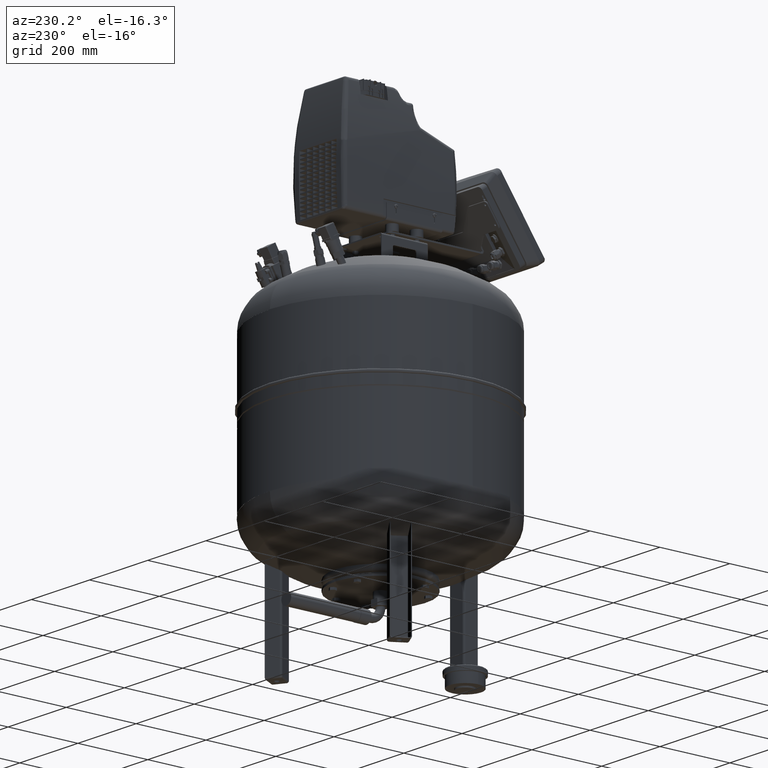
[diagram: clean part render]
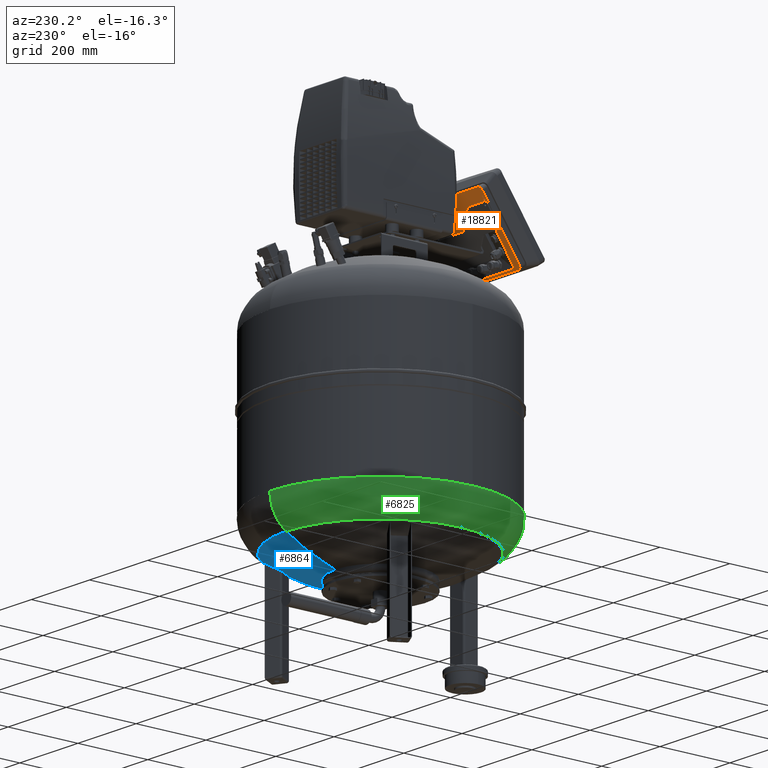
[diagram: same view with three faces highlighted in distinct colors, each labeled with its STEP entity id]
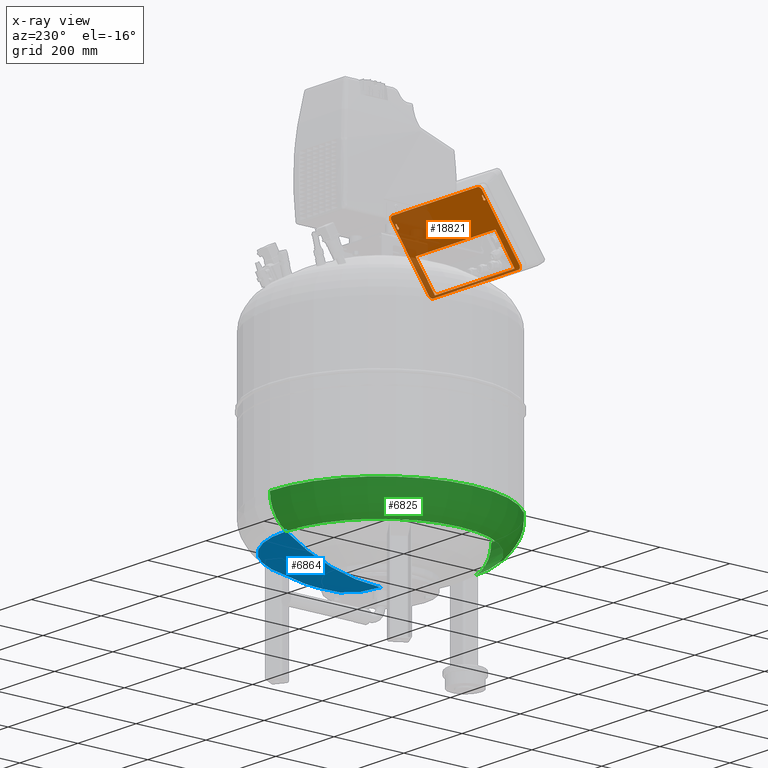
[diagram: x-ray of the same camera — body ghosted, the three highlighted faces saturated]
A machine part, auxiliary view with three faces highlighted in distinct colors.
The next image is the same camera in x-ray (body ghosted, the three faces saturated) — at least one of them is partly hidden behind the body in this view.
Their STEP definitions:

[orange] entity #18821 — the highlighted planar face has unit normal (0, -0.8192, 0.5736).
#18479=AXIS2_PLACEMENT_3D('Circle Axis2P3D',#18477,#18478,$) ;
#18534=AXIS2_PLACEMENT_3D('Circle Axis2P3D',#18532,#18533,$) ;
#18582=AXIS2_PLACEMENT_3D('Circle Axis2P3D',#18580,#18581,$) ;
#18630=AXIS2_PLACEMENT_3D('Circle Axis2P3D',#18628,#18629,$) ;
#18667=AXIS2_PLACEMENT_3D('Plane Axis2P3D',#18664,#18665,#18666) ;
#18690=AXIS2_PLACEMENT_3D('Circle Axis2P3D',#18688,#18689,$) ;
#18697=AXIS2_PLACEMENT_3D('Circle Axis2P3D',#18695,#18696,$) ;
#18704=AXIS2_PLACEMENT_3D('Circle Axis2P3D',#18702,#18703,$) ;
#18711=AXIS2_PLACEMENT_3D('Circle Axis2P3D',#18709,#18710,$) ;
#18725=AXIS2_PLACEMENT_3D('Circle Axis2P3D',#18723,#18724,$) ;
#18732=AXIS2_PLACEMENT_3D('Circle Axis2P3D',#18730,#18731,$) ;
#18756=AXIS2_PLACEMENT_3D('Circle Axis2P3D',#18754,#18755,$) ;
#18770=AXIS2_PLACEMENT_3D('Circle Axis2P3D',#18768,#18769,$) ;
#18777=AXIS2_PLACEMENT_3D('Circle Axis2P3D',#18775,#18776,$) ;
#18477=CARTESIAN_POINT('Axis2P3D Location',(145.69999942,-267.114013202,944.892412394)) ;
#18481=CARTESIAN_POINT('Vertex',(145.69999942,-272.849777566,936.700891951)) ;
#18483=CARTESIAN_POINT('Vertex',(155.69999942,-267.114013202,944.892412394)) ;
#18508=CARTESIAN_POINT('Line Origine',(155.69999942,-214.05819284,1020.66397649)) ;
#18512=CARTESIAN_POINT('Vertex',(155.69999942,-161.002372477,1096.43554059)) ;
#18532=CARTESIAN_POINT('Axis2P3D Location',(145.69999942,-161.002372477,1096.43554059)) ;
#18536=CARTESIAN_POINT('Vertex',(145.69999942,-155.266608114,1104.62706103)) ;
#18556=CARTESIAN_POINT('Line Origine',(-0.300000579768,-155.266608114,1104.62706103)) ;
#18560=CARTESIAN_POINT('Vertex',(-146.30000058,-155.266608114,1104.62706103)) ;
#18580=CARTESIAN_POINT('Axis2P3D Location',(-146.30000058,-161.002372477,1096.43554059)) ;
#18584=CARTESIAN_POINT('Vertex',(-156.30000058,-161.002372477,1096.43554059)) ;
#18604=CARTESIAN_POINT('Line Origine',(-156.30000058,-214.05819284,1020.66397649)) ;
#18608=CARTESIAN_POINT('Vertex',(-156.30000058,-267.114013202,944.892412394)) ;
#18628=CARTESIAN_POINT('Axis2P3D Location',(-146.30000058,-267.114013202,944.892412394)) ;
#18632=CARTESIAN_POINT('Vertex',(-146.30000058,-272.849777566,936.700891951)) ;
#18652=CARTESIAN_POINT('Line Origine',(-0.300000579768,-272.849777566,936.700891951)) ;
#18664=CARTESIAN_POINT('Axis2P3D Location',(-0.300000579768,-214.05819284,1020.66397649)) ;
#18679=CARTESIAN_POINT('Line Origine',(-150.600000581,-169.742277568,1083.95366255)) ;
#18683=CARTESIAN_POINT('Vertex',(-150.60000058,-168.229435575,1086.11422483)) ;
#18685=CARTESIAN_POINT('Vertex',(-150.60000058,-171.255119561,1081.79310028)) ;
#18688=CARTESIAN_POINT('Axis2P3D Location',(-148.600000581,-172.760689423,1079.64292368)) ;
#18692=CARTESIAN_POINT('Vertex',(-151.22488153,-173.907842295,1078.00461959)) ;
#18695=CARTESIAN_POINT('Axis2P3D Location',(-148.600000581,-172.760689423,1079.64292368)) ;
#18699=CARTESIAN_POINT('Vertex',(-146.60000058,-174.266259283,1077.49274708)) ;
#18702=CARTESIAN_POINT('Axis2P3D Location',(-148.600000581,-172.760689423,1079.64292368)) ;
#18706=CARTESIAN_POINT('Vertex',(-145.975119631,-171.61353655,1081.28122777)) ;
#18709=CARTESIAN_POINT('Axis2P3D Location',(-148.600000581,-172.760689423,1079.64292368)) ;
#18713=CARTESIAN_POINT('Vertex',(-146.600000581,-171.255119562,1081.79310027)) ;
#18716=CARTESIAN_POINT('Line Origine',(-146.600000581,-169.742277568,1083.95366255)) ;
#18720=CARTESIAN_POINT('Vertex',(-146.60000058,-168.229435575,1086.11422483)) ;
#18723=CARTESIAN_POINT('Axis2P3D Location',(-148.600000581,-168.229435575,1086.11422483)) ;
#18727=CARTESIAN_POINT('Vertex',(-148.60000058,-167.082282702,1087.75252892)) ;
#18730=CARTESIAN_POINT('Axis2P3D Location',(-148.600000581,-168.229435575,1086.11422483)) ;
#18745=CARTESIAN_POINT('Line Origine',(149.999999421,-169.742277568,1083.95366255)) ;
#18749=CARTESIAN_POINT('Vertex',(149.99999942,-171.255119561,1081.79310028)) ;
#18751=CARTESIAN_POINT('Vertex',(149.99999942,-168.229435576,1086.11422483)) ;
#18754=CARTESIAN_POINT('Axis2P3D Location',(147.999999421,-168.229435575,1086.11422483)) ;
#18758=CARTESIAN_POINT('Vertex',(145.99999942,-168.229435575,1086.11422483)) ;
#18761=CARTESIAN_POINT('Line Origine',(145.999999421,-169.742277568,1083.95366255)) ;
#18765=CARTESIAN_POINT('Vertex',(145.99999942,-171.255119561,1081.79310028)) ;
#18768=CARTESIAN_POINT('Axis2P3D Location',(147.999999421,-172.760689423,1079.64292368)) ;
#18772=CARTESIAN_POINT('Vertex',(145.99999942,-174.266259283,1077.49274708)) ;
#18775=CARTESIAN_POINT('Axis2P3D Location',(147.999999421,-172.760689423,1079.64292368)) ;
#18787=CARTESIAN_POINT('Line Origine',(136.69999942,-242.020044112,980.730314332)) ;
#18791=CARTESIAN_POINT('Vertex',(136.69999942,-269.695107166,941.206228195)) ;
#18793=CARTESIAN_POINT('Vertex',(136.69999942,-214.344981058,1020.25440047)) ;
#18796=CARTESIAN_POINT('Line Origine',(-0.300000579768,-214.344981058,1020.25440047)) ;
#18800=CARTESIAN_POINT('Vertex',(-137.30000058,-214.344981058,1020.25440047)) ;
#18803=CARTESIAN_POINT('Line Origine',(-137.30000058,-242.020044112,980.730314332)) ;
#18807=CARTESIAN_POINT('Vertex',(-137.30000058,-269.695107166,941.206228195)) ;
#18810=CARTESIAN_POINT('Line Origine',(-0.300000579768,-269.695107166,941.206228195)) ;
#18478=DIRECTION('Axis2P3D Direction',(-1.672843E-016,-0.819152044289,0.573576436351)) ;
#18509=DIRECTION('Vector Direction',(0.,0.573576436351,0.819152044289)) ;
#18533=DIRECTION('Axis2P3D Direction',(0.,-0.819152044289,0.573576436351)) ;
#18557=DIRECTION('Vector Direction',(-1.,0.,0.)) ;
#18581=DIRECTION('Axis2P3D Direction',(-1.672843E-016,-0.819152044289,0.573576436351)) ;
#18605=DIRECTION('Vector Direction',(0.,-0.573576436351,-0.819152044289)) ;
#18629=DIRECTION('Axis2P3D Direction',(0.,-0.819152044289,0.573576436351)) ;
#18653=DIRECTION('Vector Direction',(1.,0.,0.)) ;
#18665=DIRECTION('Axis2P3D Direction',(0.,-0.819152044289,0.573576436351)) ;
#18666=DIRECTION('Axis2P3D XDirection',(-1.,0.,0.)) ;
#18680=DIRECTION('Vector Direction',(0.,-0.573576436351,-0.819152044289)) ;
#18689=DIRECTION('Axis2P3D Direction',(0.,-0.819152044289,0.573576436351)) ;
#18696=DIRECTION('Axis2P3D Direction',(0.,-0.819152044289,0.573576436351)) ;
#18703=DIRECTION('Axis2P3D Direction',(0.,-0.819152044289,0.573576436351)) ;
#18710=DIRECTION('Axis2P3D Direction',(0.,-0.819152044289,0.573576436351)) ;
#18717=DIRECTION('Vector Direction',(0.,0.573576436351,0.819152044289)) ;
#18724=DIRECTION('Axis2P3D Direction',(0.,-0.819152044289,0.573576436351)) ;
#18731=DIRECTION('Axis2P3D Direction',(0.,-0.819152044289,0.573576436351)) ;
#18746=DIRECTION('Vector Direction',(0.,0.573576436351,0.819152044289)) ;
#18755=DIRECTION('Axis2P3D Direction',(0.,-0.819152044289,0.573576436351)) ;
#18762=DIRECTION('Vector Direction',(0.,-0.573576436351,-0.819152044289)) ;
#18769=DIRECTION('Axis2P3D Direction',(0.,-0.819152044289,0.573576436351)) ;
#18776=DIRECTION('Axis2P3D Direction',(0.,-0.819152044289,0.573576436351)) ;
#18788=DIRECTION('Vector Direction',(0.,0.573576436351,0.819152044289)) ;
#18797=DIRECTION('Vector Direction',(-1.,0.,0.)) ;
#18804=DIRECTION('Vector Direction',(0.,-0.573576436351,-0.819152044289)) ;
#18811=DIRECTION('Vector Direction',(1.,0.,0.)) ;
#18510=VECTOR('Line Direction',#18509,1.) ;
#18558=VECTOR('Line Direction',#18557,1.) ;
#18606=VECTOR('Line Direction',#18605,1.) ;
#18654=VECTOR('Line Direction',#18653,1.) ;
#18681=VECTOR('Line Direction',#18680,1.) ;
#18718=VECTOR('Line Direction',#18717,1.) ;
#18747=VECTOR('Line Direction',#18746,1.) ;
#18763=VECTOR('Line Direction',#18762,1.) ;
#18789=VECTOR('Line Direction',#18788,1.) ;
#18798=VECTOR('Line Direction',#18797,1.) ;
#18805=VECTOR('Line Direction',#18804,1.) ;
#18812=VECTOR('Line Direction',#18811,1.) ;
#18670=ORIENTED_EDGE('',*,*,#18514,.F.) ;
#18671=ORIENTED_EDGE('',*,*,#18485,.F.) ;
#18672=ORIENTED_EDGE('',*,*,#18656,.F.) ;
#18673=ORIENTED_EDGE('',*,*,#18634,.F.) ;
#18674=ORIENTED_EDGE('',*,*,#18610,.F.) ;
#18675=ORIENTED_EDGE('',*,*,#18586,.F.) ;
#18676=ORIENTED_EDGE('',*,*,#18562,.F.) ;
#18677=ORIENTED_EDGE('',*,*,#18538,.F.) ;
#18736=ORIENTED_EDGE('',*,*,#18687,.T.) ;
#18737=ORIENTED_EDGE('',*,*,#18694,.T.) ;
#18738=ORIENTED_EDGE('',*,*,#18701,.T.) ;
#18739=ORIENTED_EDGE('',*,*,#18708,.T.) ;
#18740=ORIENTED_EDGE('',*,*,#18715,.T.) ;
#18741=ORIENTED_EDGE('',*,*,#18722,.T.) ;
#18742=ORIENTED_EDGE('',*,*,#18729,.T.) ;
#18743=ORIENTED_EDGE('',*,*,#18734,.T.) ;
#18781=ORIENTED_EDGE('',*,*,#18753,.T.) ;
#18782=ORIENTED_EDGE('',*,*,#18760,.T.) ;
#18783=ORIENTED_EDGE('',*,*,#18767,.T.) ;
#18784=ORIENTED_EDGE('',*,*,#18774,.T.) ;
#18785=ORIENTED_EDGE('',*,*,#18779,.T.) ;
#18816=ORIENTED_EDGE('',*,*,#18795,.T.) ;
#18817=ORIENTED_EDGE('',*,*,#18802,.T.) ;
#18818=ORIENTED_EDGE('',*,*,#18809,.T.) ;
#18819=ORIENTED_EDGE('',*,*,#18814,.T.) ;
#18744=FACE_BOUND('',#18735,.T.) ;
#18786=FACE_BOUND('',#18780,.T.) ;
#18820=FACE_BOUND('',#18815,.T.) ;
#18821=ADVANCED_FACE('2A5',(#18678,#18744,#18786,#18820),#18668,.F.) ;
#18480=CIRCLE('generated circle',#18479,10.) ;
#18535=CIRCLE('generated circle',#18534,10.) ;
#18583=CIRCLE('generated circle',#18582,10.) ;
#18631=CIRCLE('generated circle',#18630,10.) ;
#18691=CIRCLE('generated circle',#18690,3.30000000004) ;
#18698=CIRCLE('generated circle',#18697,3.30000000004) ;
#18705=CIRCLE('generated circle',#18704,3.30000000004) ;
#18712=CIRCLE('generated circle',#18711,3.30000000004) ;
#18726=CIRCLE('generated circle',#18725,2.) ;
#18733=CIRCLE('generated circle',#18732,2.) ;
#18757=CIRCLE('generated circle',#18756,2.) ;
#18771=CIRCLE('generated circle',#18770,3.30000000004) ;
#18778=CIRCLE('generated circle',#18777,3.30000000004) ;
#18485=EDGE_CURVE('',#18482,#18484,#18480,.T.) ;
#18514=EDGE_CURVE('',#18484,#18513,#18511,.T.) ;
#18538=EDGE_CURVE('',#18513,#18537,#18535,.T.) ;
#18562=EDGE_CURVE('',#18537,#18561,#18559,.T.) ;
#18586=EDGE_CURVE('',#18561,#18585,#18583,.T.) ;
#18610=EDGE_CURVE('',#18585,#18609,#18607,.T.) ;
#18634=EDGE_CURVE('',#18609,#18633,#18631,.T.) ;
#18656=EDGE_CURVE('',#18633,#18482,#18655,.T.) ;
#18687=EDGE_CURVE('',#18684,#18686,#18682,.T.) ;
#18694=EDGE_CURVE('',#18686,#18693,#18691,.T.) ;
#18701=EDGE_CURVE('',#18693,#18700,#18698,.T.) ;
#18708=EDGE_CURVE('',#18700,#18707,#18705,.T.) ;
#18715=EDGE_CURVE('',#18707,#18714,#18712,.T.) ;
#18722=EDGE_CURVE('',#18714,#18721,#18719,.T.) ;
#18729=EDGE_CURVE('',#18721,#18728,#18726,.T.) ;
#18734=EDGE_CURVE('',#18728,#18684,#18733,.T.) ;
#18753=EDGE_CURVE('',#18750,#18752,#18748,.T.) ;
#18760=EDGE_CURVE('',#18752,#18759,#18757,.T.) ;
#18767=EDGE_CURVE('',#18759,#18766,#18764,.T.) ;
#18774=EDGE_CURVE('',#18766,#18773,#18771,.T.) ;
#18779=EDGE_CURVE('',#18773,#18750,#18778,.T.) ;
#18795=EDGE_CURVE('',#18792,#18794,#18790,.T.) ;
#18802=EDGE_CURVE('',#18794,#18801,#18799,.T.) ;
#18809=EDGE_CURVE('',#18801,#18808,#18806,.T.) ;
#18814=EDGE_CURVE('',#18808,#18792,#18813,.T.) ;
#18669=EDGE_LOOP('',(#18670,#18671,#18672,#18673,#18674,#18675,#18676,#18677)) ;
#18735=EDGE_LOOP('',(#18736,#18737,#18738,#18739,#18740,#18741,#18742,#18743)) ;
#18780=EDGE_LOOP('',(#18781,#18782,#18783,#18784,#18785)) ;
#18815=EDGE_LOOP('',(#18816,#18817,#18818,#18819)) ;
#18678=FACE_OUTER_BOUND('',#18669,.T.) ;
#18511=LINE('Line',#18508,#18510) ;
#18559=LINE('Line',#18556,#18558) ;
#18607=LINE('Line',#18604,#18606) ;
#18655=LINE('Line',#18652,#18654) ;
#18682=LINE('Line',#18679,#18681) ;
#18719=LINE('Line',#18716,#18718) ;
#18748=LINE('Line',#18745,#18747) ;
#18764=LINE('Line',#18761,#18763) ;
#18790=LINE('Line',#18787,#18789) ;
#18799=LINE('Line',#18796,#18798) ;
#18806=LINE('Line',#18803,#18805) ;
#18813=LINE('Line',#18810,#18812) ;
#18668=PLANE('Plane',#18667) ;
#18482=VERTEX_POINT('',#18481) ;
#18484=VERTEX_POINT('',#18483) ;
#18513=VERTEX_POINT('',#18512) ;
#18537=VERTEX_POINT('',#18536) ;
#18561=VERTEX_POINT('',#18560) ;
#18585=VERTEX_POINT('',#18584) ;
#18609=VERTEX_POINT('',#18608) ;
#18633=VERTEX_POINT('',#18632) ;
#18684=VERTEX_POINT('',#18683) ;
#18686=VERTEX_POINT('',#18685) ;
#18693=VERTEX_POINT('',#18692) ;
#18700=VERTEX_POINT('',#18699) ;
#18707=VERTEX_POINT('',#18706) ;
#18714=VERTEX_POINT('',#18713) ;
#18721=VERTEX_POINT('',#18720) ;
#18728=VERTEX_POINT('',#18727) ;
#18750=VERTEX_POINT('',#18749) ;
#18752=VERTEX_POINT('',#18751) ;
#18759=VERTEX_POINT('',#18758) ;
#18766=VERTEX_POINT('',#18765) ;
#18773=VERTEX_POINT('',#18772) ;
#18792=VERTEX_POINT('',#18791) ;
#18794=VERTEX_POINT('',#18793) ;
#18801=VERTEX_POINT('',#18800) ;
#18808=VERTEX_POINT('',#18807) ;

[blue] entity #6864 — the highlighted spherical surface has radius 509 mm.
#6781=AXIS2_PLACEMENT_3D('Circle Axis2P3D',#6779,#6780,$) ;
#6840=AXIS2_PLACEMENT_3D('Circle Axis2P3D',#6838,#6839,$) ;
#6852=AXIS2_PLACEMENT_3D('Sphere Axis2P3D',#6849,#6850,#6851) ;
#6856=AXIS2_PLACEMENT_3D('Circle Axis2P3D',#6854,#6855,$) ;
#6776=CARTESIAN_POINT('Vertex',(270.63902439,-1.59789222989E-013,268.913560319)) ;
#6779=CARTESIAN_POINT('Axis2P3D Location',(8.06582611976E-015,-1.43124917185E-014,268.913560319)) ;
#6783=CARTESIAN_POINT('Vertex',(4.12095476142E-014,270.63902439,268.913560319)) ;
#6835=CARTESIAN_POINT('Vertex',(-1.87211571315E-014,-9.350178E-014,191.)) ;
#6838=CARTESIAN_POINT('Axis2P3D Location',(-1.005746E-013,-9.350178E-014,700.)) ;
#6849=CARTESIAN_POINT('Axis2P3D Location',(-1.005746E-013,-9.350178E-014,700.)) ;
#6854=CARTESIAN_POINT('Axis2P3D Location',(-1.005746E-013,-9.350178E-014,700.)) ;
#6780=DIRECTION('Axis2P3D Direction',(-9.619823E-017,0.,1.)) ;
#6839=DIRECTION('Axis2P3D Direction',(-2.44929359829E-016,-1.,0.)) ;
#6850=DIRECTION('Axis2P3D Direction',(0.,0.,1.)) ;
#6851=DIRECTION('Axis2P3D XDirection',(1.,0.,0.)) ;
#6855=DIRECTION('Axis2P3D Direction',(1.,-6.12323399574E-017,0.)) ;
#6860=ORIENTED_EDGE('',*,*,#6858,.T.) ;
#6861=ORIENTED_EDGE('',*,*,#6785,.F.) ;
#6862=ORIENTED_EDGE('',*,*,#6842,.T.) ;
#6864=ADVANCED_FACE('2AF',(#6863),#6853,.T.) ;
#6782=CIRCLE('generated circle',#6781,270.63902439) ;
#6841=CIRCLE('generated circle',#6840,509.) ;
#6857=CIRCLE('generated circle',#6856,509.) ;
#6785=EDGE_CURVE('',#6777,#6784,#6782,.T.) ;
#6842=EDGE_CURVE('',#6777,#6836,#6841,.F.) ;
#6858=EDGE_CURVE('',#6836,#6784,#6857,.T.) ;
#6859=EDGE_LOOP('',(#6860,#6861,#6862)) ;
#6863=FACE_OUTER_BOUND('',#6859,.T.) ;
#6853=SPHERICAL_SURFACE('',#6852,509.) ;
#6777=VERTEX_POINT('',#6776) ;
#6784=VERTEX_POINT('',#6783) ;
#6836=VERTEX_POINT('',#6835) ;

[green] entity #6825 — the highlighted toroidal blend (fillet) surface has major radius 218 mm and minor (blend) radius 99 mm.
#6709=AXIS2_PLACEMENT_3D('Circle Axis2P3D',#6707,#6708,$) ;
#6727=AXIS2_PLACEMENT_3D('Circle Axis2P3D',#6725,#6726,$) ;
#6767=AXIS2_PLACEMENT_3D('Circle Axis2P3D',#6765,#6766,$) ;
#6788=AXIS2_PLACEMENT_3D('Circle Axis2P3D',#6786,#6787,$) ;
#6803=AXIS2_PLACEMENT_3D('Torus Axis2P3D',#6800,#6801,#6802) ;
#6807=AXIS2_PLACEMENT_3D('Circle Axis2P3D',#6805,#6806,$) ;
#6814=AXIS2_PLACEMENT_3D('Circle Axis2P3D',#6812,#6813,$) ;
#6671=CARTESIAN_POINT('Vertex',(-317.,4.79278812801E-014,352.759449373)) ;
#6704=CARTESIAN_POINT('Vertex',(3.8821303533E-014,317.,352.759449373)) ;
#6707=CARTESIAN_POINT('Axis2P3D Location',(-1.557254E-014,-2.97147257858E-014,352.759449373)) ;
#6725=CARTESIAN_POINT('Axis2P3D Location',(-1.557254E-014,-2.97147257858E-014,352.759449373)) ;
#6729=CARTESIAN_POINT('Vertex',(-6.12606267986E-030,-317.,352.759449373)) ;
#6765=CARTESIAN_POINT('Axis2P3D Location',(0.,-218.,352.759449373)) ;
#6769=CARTESIAN_POINT('Vertex',(-5.8221616869E-014,-270.63902439,268.913560319)) ;
#6783=CARTESIAN_POINT('Vertex',(4.12095476142E-014,270.63902439,268.913560319)) ;
#6786=CARTESIAN_POINT('Axis2P3D Location',(2.66973002214E-014,218.,352.759449373)) ;
#6800=CARTESIAN_POINT('Axis2P3D Location',(0.,-2.971473E-014,352.759449373)) ;
#6805=CARTESIAN_POINT('Axis2P3D Location',(8.06582611976E-015,-1.43124917185E-014,268.913560319)) ;
#6809=CARTESIAN_POINT('Vertex',(-270.63902439,2.75778831515E-013,268.913560319)) ;
#6812=CARTESIAN_POINT('Axis2P3D Location',(8.06582611976E-015,-1.43124917185E-014,268.913560319)) ;
#6708=DIRECTION('Axis2P3D Direction',(0.,-1.83697E-016,1.)) ;
#6726=DIRECTION('Axis2P3D Direction',(0.,-1.83697E-016,1.)) ;
#6766=DIRECTION('Axis2P3D Direction',(-1.,-0.,-9.619823E-017)) ;
#6787=DIRECTION('Axis2P3D Direction',(1.,-1.22464679915E-016,9.619823E-017)) ;
#6801=DIRECTION('Axis2P3D Direction',(-9.619823E-017,-1.83697E-016,1.)) ;
#6802=DIRECTION('Axis2P3D XDirection',(1.22464679915E-016,1.,0.)) ;
#6806=DIRECTION('Axis2P3D Direction',(-9.619823E-017,0.,1.)) ;
#6813=DIRECTION('Axis2P3D Direction',(-9.619823E-017,0.,1.)) ;
#6818=ORIENTED_EDGE('',*,*,#6771,.F.) ;
#6819=ORIENTED_EDGE('',*,*,#6731,.F.) ;
#6820=ORIENTED_EDGE('',*,*,#6711,.F.) ;
#6821=ORIENTED_EDGE('',*,*,#6790,.T.) ;
#6822=ORIENTED_EDGE('',*,*,#6811,.T.) ;
#6823=ORIENTED_EDGE('',*,*,#6816,.T.) ;
#6825=ADVANCED_FACE('2AF',(#6824),#6804,.T.) ;
#6710=CIRCLE('generated circle',#6709,317.) ;
#6728=CIRCLE('generated circle',#6727,317.) ;
#6768=CIRCLE('generated circle',#6767,99.) ;
#6789=CIRCLE('generated circle',#6788,99.) ;
#6808=CIRCLE('generated circle',#6807,270.63902439) ;
#6815=CIRCLE('generated circle',#6814,270.63902439) ;
#6804=TOROIDAL_SURFACE('homeo Torus',#6803,218.,99.) ;
#6711=EDGE_CURVE('',#6705,#6672,#6710,.T.) ;
#6731=EDGE_CURVE('',#6672,#6730,#6728,.T.) ;
#6771=EDGE_CURVE('',#6730,#6770,#6768,.F.) ;
#6790=EDGE_CURVE('',#6705,#6784,#6789,.F.) ;
#6811=EDGE_CURVE('',#6784,#6810,#6808,.T.) ;
#6816=EDGE_CURVE('',#6810,#6770,#6815,.T.) ;
#6817=EDGE_LOOP('',(#6818,#6819,#6820,#6821,#6822,#6823)) ;
#6824=FACE_OUTER_BOUND('',#6817,.T.) ;
#6672=VERTEX_POINT('',#6671) ;
#6705=VERTEX_POINT('',#6704) ;
#6730=VERTEX_POINT('',#6729) ;
#6770=VERTEX_POINT('',#6769) ;
#6784=VERTEX_POINT('',#6783) ;
#6810=VERTEX_POINT('',#6809) ;